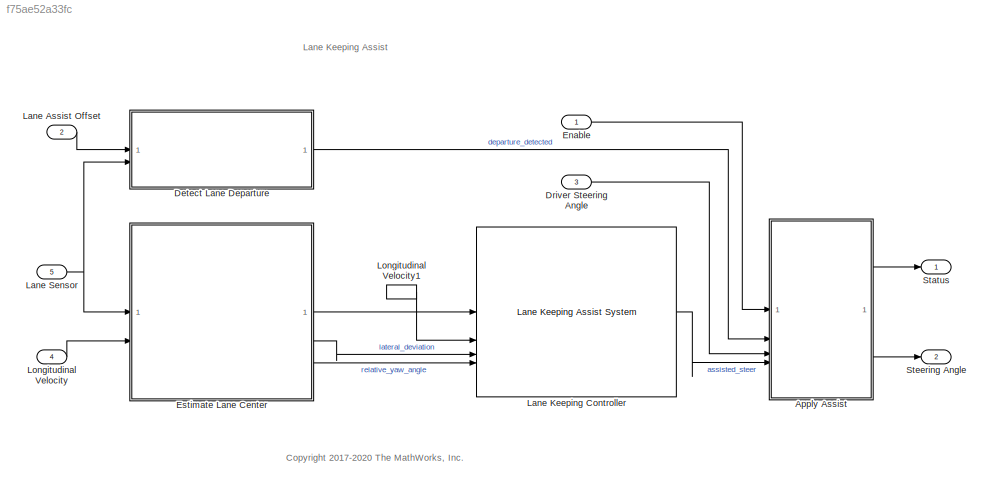
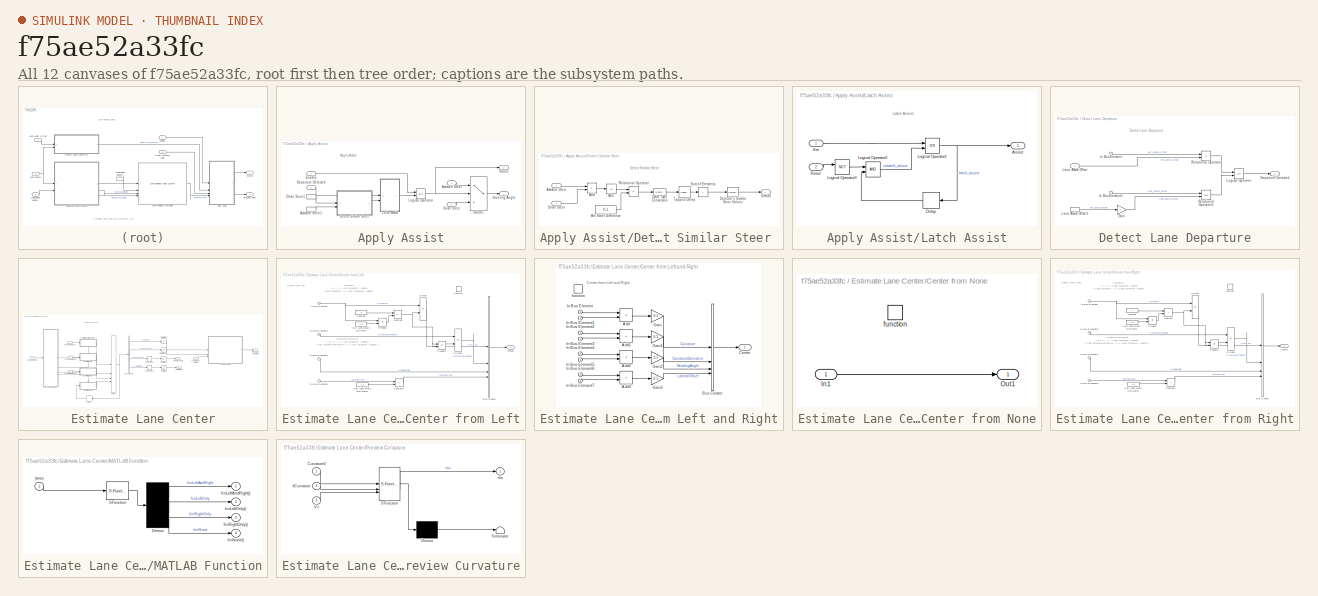
[diagram: thumbnail index - all 12 canvases of the model, root first then tree order]
MODEL slx_f75ae52a33fc
KIND model
CONFIG AbsTol = auto
CONFIG EnableMultiTasking = off
CONFIG FixedStep = Ts
CONFIG MaxStep = auto
CONFIG MinStep = auto
CONFIG RelTol = 1e-3
CONFIG SampleTimeConstraint = Unconstrained
CONFIG SolverName = FixedStepDiscrete
CONFIG StartTime = 0.0
CONFIG StopTime = inf
BLOCK [SubSystem] Apply Assist
BLOCK [Inport] Apply Assist/Assisted Steer
  Port = 4
BLOCK [InportShadow] Apply Assist/Assisted Steer1
  Port = 4
BLOCK [Inport] Apply Assist/Departure Detected
  Port = 2
BLOCK [SubSystem] Apply Assist/Detect Similar Steer 
BLOCK [Abs] Apply Assist/Detect Similar Steer /Abs
  SaturateOnIntegerOverflow = off
BLOCK [Sum] Apply Assist/Detect Similar Steer /Add
  IconShape = rectangular
  Inputs = +-
BLOCK [Inport] Apply Assist/Detect Similar Steer /Assisted Steer
  Port = 2
BLOCK [DataTypeConversion] Apply Assist/Detect Similar Steer /Data Type Conversion
  OutDataTypeStr = single
  RndMeth = Floor
  SaturateOnIntegerOverflow = off
BLOCK [Reference] Apply Assist/Detect Similar Steer /Deteted 5 Similar Steer Values  REF=simulink/Logic and Bit
Operations/Compare
To Constant
  SourceBlock = simulink/Logic and Bit\nOperations/Compare\nTo Constant
  SourceType = Compare To Constant
BLOCK [Inport] Apply Assist/Detect Similar Steer /Driver Steer
BLOCK [Constant] Apply Assist/Detect Similar Steer /Min Steer Difference
  Value = 0.1
BLOCK [RelationalOperator] Apply Assist/Detect Similar Steer /Relational Operator
  InputSameDT = off
  Operator = <=
  OutDataTypeStr = boolean
  RndMeth = Simplest
BLOCK [Outport] Apply Assist/Detect Similar Steer /Similar
  VectorParamsAs1DForOutWhenUnconnected = off
BLOCK [Sum] Apply Assist/Detect Similar Steer /Sum of Elements
  IconShape = rectangular
  Inputs = +
BLOCK [Reference] Apply Assist/Detect Similar Steer /Tapped Delay  REF=simulink/Discrete/Tapped Delay
  SourceBlock = simulink/Discrete/Tapped Delay
  SourceType = Tapped Delay Line
BLOCK [Inport] Apply Assist/Driver Steer
  Port = 3
BLOCK [InportShadow] Apply Assist/Driver Steer1
  Port = 3
BLOCK [Inport] Apply Assist/Enable
BLOCK [SubSystem] Apply Assist/Latch Assist
BLOCK [Outport] Apply Assist/Latch Assist/Assist
  VectorParamsAs1DForOutWhenUnconnected = off
BLOCK [Delay] Apply Assist/Latch Assist/Delay
  DelayLength = 1
  InputPortMap = u0
BLOCK [Logic] Apply Assist/Latch Assist/Logical Operator1
  AllPortsSameDT = off
  IconShape = distinctive
  Operator = OR
  OutDataTypeStr = boolean
BLOCK [Logic] Apply Assist/Latch Assist/Logical Operator2
  AllPortsSameDT = off
  IconShape = distinctive
  OutDataTypeStr = boolean
BLOCK [Logic] Apply Assist/Latch Assist/Logical Operator3
  AllPortsSameDT = off
  IconShape = distinctive
  Operator = NOT
  OutDataTypeStr = boolean
BLOCK [Inport] Apply Assist/Latch Assist/Reset
  Port = 2
BLOCK [Inport] Apply Assist/Latch Assist/Set
BLOCK [Logic] Apply Assist/Logical Operator
  AllPortsSameDT = off
  IconShape = distinctive
  OutDataTypeStr = boolean
BLOCK [Outport] Apply Assist/Status
  VectorParamsAs1DForOutWhenUnconnected = off
BLOCK [Outport] Apply Assist/Steering Angle
  Port = 2
  Unit = rad
  VectorParamsAs1DForOutWhenUnconnected = off
BLOCK [Switch] Apply Assist/Switch1
  Criteria = u2 ~= 0
  InputSameDT = off
  SaturateOnIntegerOverflow = off
  Threshold = 2
BLOCK [SubSystem] Detect Lane Departure
BLOCK [Outport] Detect Lane Departure/Departure Detected
  VectorParamsAs1DForOutWhenUnconnected = off
BLOCK [Gain] Detect Lane Departure/Gain
  Gain = -1
BLOCK [Inport] Detect Lane Departure/In Bus Element
  Port = 2
BLOCK [Inport] Detect Lane Departure/In Bus Element1
  Port = 2
BLOCK [Inport] Detect Lane Departure/Lane Assist Offset
BLOCK [InportShadow] Detect Lane Departure/Lane Assist Offset1
BLOCK [Logic] Detect Lane Departure/Logical Operator
  AllPortsSameDT = off
  IconShape = distinctive
  Operator = OR
  OutDataTypeStr = boolean
BLOCK [RelationalOperator] Detect Lane Departure/Relational Operator
  InputSameDT = off
  Operator = <=
  OutDataTypeStr = boolean
  RndMeth = Simplest
BLOCK [RelationalOperator] Detect Lane Departure/Relational Operator1
  InputSameDT = off
  OutDataTypeStr = boolean
  RndMeth = Simplest
BLOCK [Inport] Driver Steering Angle
  Port = 3
  Unit = rad
BLOCK [Inport] Enable
  OutDataTypeStr = boolean
  SampleTime = Ts
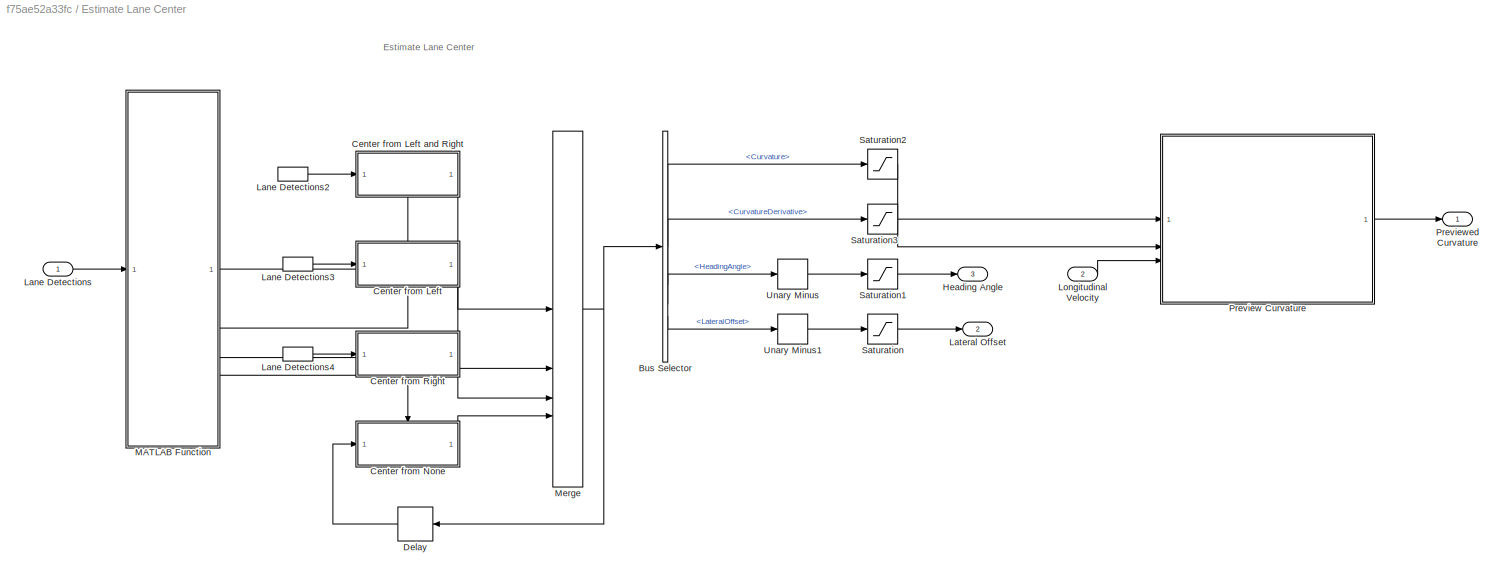
BLOCK [SubSystem] Estimate Lane Center
  VariantControl = v2
BLOCK [BusSelector] Estimate Lane Center/Bus Selector
  OutputSignals = Curvature,CurvatureDerivative,HeadingAngle,LateralOffset
BLOCK [SubSystem] Estimate Lane Center/Center from Left
  TreatAsAtomicUnit = on
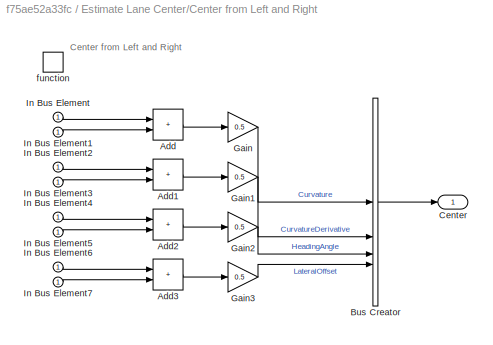
BLOCK [SubSystem] Estimate Lane Center/Center from Left and Right
  TreatAsAtomicUnit = on
BLOCK [Sum] Estimate Lane Center/Center from Left and Right/Add
  IconShape = rectangular
BLOCK [Sum] Estimate Lane Center/Center from Left and Right/Add1
  IconShape = rectangular
BLOCK [Sum] Estimate Lane Center/Center from Left and Right/Add2
  IconShape = rectangular
BLOCK [Sum] Estimate Lane Center/Center from Left and Right/Add3
  IconShape = rectangular
BLOCK [BusCreator] Estimate Lane Center/Center from Left and Right/Bus Creator
  DisplayOption = bar
  InheritFromInputs = on
  Inputs = 4
BLOCK [Outport] Estimate Lane Center/Center from Left and Right/Center
  VectorParamsAs1DForOutWhenUnconnected = off
BLOCK [Gain] Estimate Lane Center/Center from Left and Right/Gain
  Gain = 0.5
BLOCK [Gain] Estimate Lane Center/Center from Left and Right/Gain1
  Gain = 0.5
BLOCK [Gain] Estimate Lane Center/Center from Left and Right/Gain2
  Gain = 0.5
BLOCK [Gain] Estimate Lane Center/Center from Left and Right/Gain3
  Gain = 0.5
BLOCK [Inport] Estimate Lane Center/Center from Left and Right/In Bus Element
BLOCK [Inport] Estimate Lane Center/Center from Left and Right/In Bus Element1
BLOCK [Inport] Estimate Lane Center/Center from Left and Right/In Bus Element2
BLOCK [Inport] Estimate Lane Center/Center from Left and Right/In Bus Element3
BLOCK [Inport] Estimate Lane Center/Center from Left and Right/In Bus Element4
BLOCK [Inport] Estimate Lane Center/Center from Left and Right/In Bus Element5
BLOCK [Inport] Estimate Lane Center/Center from Left and Right/In Bus Element6
BLOCK [Inport] Estimate Lane Center/Center from Left and Right/In Bus Element7
BLOCK [TriggerPort] Estimate Lane Center/Center from Left and Right/function
  StatesWhenEnabling = held
  TriggerType = function-call
  VariantControl = Variant
BLOCK [BusCreator] Estimate Lane Center/Center from Left/Bus Creator
  DisplayOption = bar
  InheritFromInputs = on
  Inputs = 4
BLOCK [Outport] Estimate Lane Center/Center from Left/Center
  VectorParamsAs1DForOutWhenUnconnected = off
BLOCK [Constant] Estimate Lane Center/Center from Left/Constant
  OutDataTypeStr = Inherit: Inherit via back propagation
BLOCK [Product] Estimate Lane Center/Center from Left/Divide
  Inputs = */
BLOCK [Product] Estimate Lane Center/Center from Left/Divide1
  Inputs = */
BLOCK [Constant] Estimate Lane Center/Center from Left/Half Lane Width Estimate
  OutDataTypeStr = Inherit: Inherit via back propagation
  Value = 1.8
BLOCK [Constant] Estimate Lane Center/Center from Left/Half Lane Width Estimate1
  OutDataTypeStr = Inherit: Inherit via back propagation
  Value = 1.8
BLOCK [Inport] Estimate Lane Center/Center from Left/In Bus Element
BLOCK [Inport] Estimate Lane Center/Center from Left/In Bus Element2
BLOCK [Inport] Estimate Lane Center/Center from Left/In Bus Element4
BLOCK [Inport] Estimate Lane Center/Center from Left/In Bus Element6
BLOCK [Product] Estimate Lane Center/Center from Left/Product
BLOCK [Product] Estimate Lane Center/Center from Left/Product1
BLOCK [Sum] Estimate Lane Center/Center from Left/Subtract
  IconShape = rectangular
  Inputs = +-
BLOCK [Sum] Estimate Lane Center/Center from Left/Subtract1
  IconShape = rectangular
  Inputs = +-
BLOCK [TriggerPort] Estimate Lane Center/Center from Left/function
  StatesWhenEnabling = held
  TriggerType = function-call
  VariantControl = Variant
BLOCK [SubSystem] Estimate Lane Center/Center from None
  TreatAsAtomicUnit = on
BLOCK [Inport] Estimate Lane Center/Center from None/In1
BLOCK [Outport] Estimate Lane Center/Center from None/Out1
  VectorParamsAs1DForOutWhenUnconnected = off
BLOCK [TriggerPort] Estimate Lane Center/Center from None/function
  StatesWhenEnabling = held
  TriggerType = function-call
  VariantControl = Variant
BLOCK [SubSystem] Estimate Lane Center/Center from Right
  TreatAsAtomicUnit = on
BLOCK [BusCreator] Estimate Lane Center/Center from Right/Bus Creator
  DisplayOption = bar
  InheritFromInputs = on
  Inputs = 4
BLOCK [Outport] Estimate Lane Center/Center from Right/Center
  VectorParamsAs1DForOutWhenUnconnected = off
BLOCK [Constant] Estimate Lane Center/Center from Right/Constant
  OutDataTypeStr = Inherit: Inherit via back propagation
BLOCK [Product] Estimate Lane Center/Center from Right/Divide
  Inputs = */
BLOCK [Product] Estimate Lane Center/Center from Right/Divide1
  Inputs = */
BLOCK [Constant] Estimate Lane Center/Center from Right/Half Lane Width Estimate
  OutDataTypeStr = Inherit: Inherit via back propagation
  Value = 1.8
BLOCK [Constant] Estimate Lane Center/Center from Right/Half Lane Width Estimate1
  OutDataTypeStr = Inherit: Inherit via back propagation
  Value = 1.8
BLOCK [Inport] Estimate Lane Center/Center from Right/In Bus Element
BLOCK [Inport] Estimate Lane Center/Center from Right/In Bus Element2
BLOCK [Inport] Estimate Lane Center/Center from Right/In Bus Element4
BLOCK [Inport] Estimate Lane Center/Center from Right/In Bus Element6
BLOCK [Product] Estimate Lane Center/Center from Right/Product
BLOCK [Product] Estimate Lane Center/Center from Right/Product1
BLOCK [Sum] Estimate Lane Center/Center from Right/Subtract
  IconShape = rectangular
BLOCK [Sum] Estimate Lane Center/Center from Right/Subtract1
  IconShape = rectangular
BLOCK [TriggerPort] Estimate Lane Center/Center from Right/function
  StatesWhenEnabling = held
  TriggerType = function-call
  VariantControl = Variant
BLOCK [Delay] Estimate Lane Center/Delay
  DelayLength = 1
  InputPortMap = u0
BLOCK [Outport] Estimate Lane Center/Heading Angle
  Port = 3
  VectorParamsAs1DForOutWhenUnconnected = off
BLOCK [Inport] Estimate Lane Center/Lane Detections
BLOCK [InportShadow] Estimate Lane Center/Lane Detections2
BLOCK [InportShadow] Estimate Lane Center/Lane Detections3
BLOCK [InportShadow] Estimate Lane Center/Lane Detections4
BLOCK [Outport] Estimate Lane Center/Lateral Offset
  Port = 2
  VectorParamsAs1DForOutWhenUnconnected = off
BLOCK [Inport] Estimate Lane Center/Longitudinal Velocity
  OutDataTypeStr = single
  Port = 2
BLOCK [SubSystem] Estimate Lane Center/MATLAB Function
  ErrorFcn = Stateflow.Translate.translate
  PermitHierarchicalResolution = ExplicitOnly
  SFBlockType = MATLAB Function
  TreatAsAtomicUnit = on
BLOCK [Demux] Estimate Lane Center/MATLAB Function/ Demux 
BLOCK [S-Function] Estimate Lane Center/MATLAB Function/ SFunction 
  EnableBusSupport = off
  FunctionName = sf_sfun
  PortCounts = [1 1]
  SFcnIsStateOwnerBlock = off
  SFunctionDeploymentMode = off
  Tag = Stateflow S-Function 9
BLOCK [Outport] Estimate Lane Center/MATLAB Function/fcnLeftAndRight()
  VectorParamsAs1DForOutWhenUnconnected = off
BLOCK [Outport] Estimate Lane Center/MATLAB Function/fcnLeftOnly()
  Port = 2
  VectorParamsAs1DForOutWhenUnconnected = off
BLOCK [Outport] Estimate Lane Center/MATLAB Function/fcnNone()
  Port = 4
  VectorParamsAs1DForOutWhenUnconnected = off
BLOCK [Outport] Estimate Lane Center/MATLAB Function/fcnRightOnly()
  Port = 3
  VectorParamsAs1DForOutWhenUnconnected = off
BLOCK [Inport] Estimate Lane Center/MATLAB Function/lanes
BLOCK [Merge] Estimate Lane Center/Merge
  Inputs = 4
BLOCK [SubSystem] Estimate Lane Center/Preview Curvature
  ErrorFcn = Stateflow.Translate.translate
  PermitHierarchicalResolution = ExplicitOnly
  SFBlockType = MATLAB Function
  SystemSampleTime = Ts
  TreatAsAtomicUnit = on
BLOCK [Demux] Estimate Lane Center/Preview Curvature/ Demux 
  Outputs = 1
BLOCK [S-Function] Estimate Lane Center/Preview Curvature/ SFunction 
  EnableBusSupport = off
  FunctionName = sf_sfun
  Parameters = PredictionHorizon,Ts
  PortCounts = [3 2]
  SFcnIsStateOwnerBlock = off
  SFunctionDeploymentMode = off
  Tag = Stateflow S-Function 10
BLOCK [Terminator] Estimate Lane Center/Preview Curvature/ Terminator 
BLOCK [Inport] Estimate Lane Center/Preview Curvature/Curvature0
BLOCK [Inport] Estimate Lane Center/Preview Curvature/Vx
  Port = 3
BLOCK [Inport] Estimate Lane Center/Preview Curvature/dCurvature
  Port = 2
BLOCK [Outport] Estimate Lane Center/Preview Curvature/rho
  VectorParamsAs1DForOutWhenUnconnected = off
BLOCK [Outport] Estimate Lane Center/Previewed Curvature
  VectorParamsAs1DForOutWhenUnconnected = off
BLOCK [Saturate] Estimate Lane Center/Saturation
BLOCK [Saturate] Estimate Lane Center/Saturation1
  LowerLimit = -0.6
  UpperLimit = 0.6
BLOCK [Saturate] Estimate Lane Center/Saturation2
  LowerLimit = -0.15
  UpperLimit = 0.15
BLOCK [Saturate] Estimate Lane Center/Saturation3
  LowerLimit = -0.06
  UpperLimit = 0.06
BLOCK [UnaryMinus] Estimate Lane Center/Unary Minus
BLOCK [UnaryMinus] Estimate Lane Center/Unary Minus1
BLOCK [Inport] Lane Assist Offset
  OutDataTypeStr = single
  Port = 2
  SampleTime = Ts
  Unit = m
BLOCK [Reference] Lane Keeping Controller  REF=mpcadaslib/Lane Keeping Assist System
  SourceBlock = mpcadaslib/Lane Keeping Assist System
  SourceType = Lane Keeping Assist (LKA) System
BLOCK [Inport] Lane Sensor
  BusOutputAsStruct = on
  OutDataTypeStr = Bus: LaneSensor
  Port = 5
  PortDimensions = [1 1]
  SampleTime = Ts
BLOCK [Inport] Longitudinal Velocity
  OutDataTypeStr = single
  Port = 4
  SampleTime = Ts
  Unit = m/s
BLOCK [InportShadow] Longitudinal Velocity1
  OutDataTypeStr = single
  Port = 4
  SampleTime = Ts
  Unit = m/s
BLOCK [Outport] Status
  PortDimensions = 1
  SamplingMode = Sample based
  SignalType = real
  VectorParamsAs1DForOutWhenUnconnected = off
BLOCK [Outport] Steering Angle
  Port = 2
  PortDimensions = 1
  SamplingMode = Sample based
  SignalType = real
  VectorParamsAs1DForOutWhenUnconnected = off
ANNOTATION (root): Lane Keeping Assist
ANNOTATION (root): <copyright redacted>
ANNOTATION Apply Assist: Apply Assist
ANNOTATION Apply Assist/Detect Similar Steer : Detect Similar Steer
ANNOTATION Apply Assist/Latch Assist: Latch Assist
ANNOTATION Detect Lane Departure: Detect Lane Departure
ANNOTATION Estimate Lane Center: Estimate Lane Center
ANNOTATION Estimate Lane Center/Center from Left: Center from Left
ANNOTATION Estimate Lane Center/Center from Left: Curvature = 1 / ( 1 / (left curvature) – guard) = left curvature / (1 – (left curvature) * guard).
ANNOTATION Estimate Lane Center/Center from Left: Curvature Derivative = D[ 1 / ( 1 / (left curvature) – guard)] = left curvature derivative / (1 – (left curvature) * guard)^2.
ANNOTATION Estimate Lane Center/Center from Left and Right: Center from Left and Right
ANNOTATION Estimate Lane Center/Center from Right: Center from Right
ANNOTATION Estimate Lane Center/Center from Right: Curvature = 1 / ( 1 / (right curvature) + guard) = right curvature / (1 + (right curvature) * guard)
ANNOTATION Estimate Lane Center/Center from Right: Curvature Derivative = D[ 1 / ( 1 / (right curvature) + guard)] = right curvature derivative / (1 + (right curvature) * guard)^2
LINE Apply Assist/Assisted Steer1:1 -> Apply Assist/Detect Similar Steer :2
LINE Apply Assist/Assisted Steer:1 -> Apply Assist/Switch1:1
LINE Apply Assist/Departure Detected:1 -> Apply Assist/Latch Assist:1
LINE Apply Assist/Detect Similar Steer /Abs:1 -> Apply Assist/Detect Similar Steer /Relational Operator:1
LINE Apply Assist/Detect Similar Steer /Add:1 -> Apply Assist/Detect Similar Steer /Abs:1
LINE Apply Assist/Detect Similar Steer /Assisted Steer:1 -> Apply Assist/Detect Similar Steer /Add:1
LINE Apply Assist/Detect Similar Steer /Data Type Conversion:1 -> Apply Assist/Detect Similar Steer /Tapped Delay:1
LINE Apply Assist/Detect Similar Steer /Deteted 5 Similar Steer Values:1 -> Apply Assist/Detect Similar Steer /Similar:1
LINE Apply Assist/Detect Similar Steer /Driver Steer:1 -> Apply Assist/Detect Similar Steer /Add:2
LINE Apply Assist/Detect Similar Steer /Min Steer Difference:1 -> Apply Assist/Detect Similar Steer /Relational Operator:2
LINE Apply Assist/Detect Similar Steer /Relational Operator:1 -> Apply Assist/Detect Similar Steer /Data Type Conversion:1
LINE Apply Assist/Detect Similar Steer /Sum of Elements:1 -> Apply Assist/Detect Similar Steer /Deteted 5 Similar Steer Values:1
LINE Apply Assist/Detect Similar Steer /Tapped Delay:1 -> Apply Assist/Detect Similar Steer /Sum of Elements:1
LINE Apply Assist/Detect Similar Steer :1 -> Apply Assist/Latch Assist:2
LINE Apply Assist/Driver Steer1:1 -> Apply Assist/Detect Similar Steer :1
LINE Apply Assist/Driver Steer:1 -> Apply Assist/Switch1:3
LINE Apply Assist/Enable:1 -> Apply Assist/Logical Operator:1
LINE Apply Assist/Latch Assist/Delay:1 -> Apply Assist/Latch Assist/Logical Operator2:2
NET Apply Assist/Latch Assist/Logical Operator1:1 -> Apply Assist/Latch Assist/Assist:1, Apply Assist/Latch Assist/Delay:1
LINE Apply Assist/Latch Assist/Logical Operator2:1 -> Apply Assist/Latch Assist/Logical Operator1:2
LINE Apply Assist/Latch Assist/Logical Operator3:1 -> Apply Assist/Latch Assist/Logical Operator2:1
LINE Apply Assist/Latch Assist/Reset:1 -> Apply Assist/Latch Assist/Logical Operator3:1
LINE Apply Assist/Latch Assist/Set:1 -> Apply Assist/Latch Assist/Logical Operator1:1
LINE Apply Assist/Latch Assist:1 -> Apply Assist/Logical Operator:2
NET Apply Assist/Logical Operator:1 -> Apply Assist/Status:1, Apply Assist/Switch1:2
LINE Apply Assist/Switch1:1 -> Apply Assist/Steering Angle:1
LINE Apply Assist:1 -> Status:1
LINE Apply Assist:2 -> Steering Angle:1
LINE Detect Lane Departure/Gain:1 -> Detect Lane Departure/Relational Operator1:2
LINE Detect Lane Departure/In Bus Element1:1 -> Detect Lane Departure/Relational Operator1:1
LINE Detect Lane Departure/In Bus Element:1 -> Detect Lane Departure/Relational Operator:1
LINE Detect Lane Departure/Lane Assist Offset1:1 -> Detect Lane Departure/Gain:1
LINE Detect Lane Departure/Lane Assist Offset:1 -> Detect Lane Departure/Relational Operator:2
LINE Detect Lane Departure/Logical Operator:1 -> Detect Lane Departure/Departure Detected:1
LINE Detect Lane Departure/Relational Operator1:1 -> Detect Lane Departure/Logical Operator:2
LINE Detect Lane Departure/Relational Operator:1 -> Detect Lane Departure/Logical Operator:1
LINE Detect Lane Departure:1 -> Apply Assist:2
LINE Driver Steering Angle:1 -> Apply Assist:3
LINE Enable:1 -> Apply Assist:1
LINE Estimate Lane Center/Bus Selector:1 -> Estimate Lane Center/Saturation2:1
LINE Estimate Lane Center/Bus Selector:2 -> Estimate Lane Center/Saturation3:1
LINE Estimate Lane Center/Bus Selector:3 -> Estimate Lane Center/Unary Minus:1
LINE Estimate Lane Center/Bus Selector:4 -> Estimate Lane Center/Unary Minus1:1
LINE Estimate Lane Center/Center from Left and Right/Add1:1 -> Estimate Lane Center/Center from Left and Right/Gain1:1
LINE Estimate Lane Center/Center from Left and Right/Add2:1 -> Estimate Lane Center/Center from Left and Right/Gain2:1
LINE Estimate Lane Center/Center from Left and Right/Add3:1 -> Estimate Lane Center/Center from Left and Right/Gain3:1
LINE Estimate Lane Center/Center from Left and Right/Add:1 -> Estimate Lane Center/Center from Left and Right/Gain:1
LINE Estimate Lane Center/Center from Left and Right/Bus Creator:1 -> Estimate Lane Center/Center from Left and Right/Center:1
LINE Estimate Lane Center/Center from Left and Right/Gain1:1 -> Estimate Lane Center/Center from Left and Right/Bus Creator:2
LINE Estimate Lane Center/Center from Left and Right/Gain2:1 -> Estimate Lane Center/Center from Left and Right/Bus Creator:3
LINE Estimate Lane Center/Center from Left and Right/Gain3:1 -> Estimate Lane Center/Center from Left and Right/Bus Creator:4
LINE Estimate Lane Center/Center from Left and Right/Gain:1 -> Estimate Lane Center/Center from Left and Right/Bus Creator:1
LINE Estimate Lane Center/Center from Left and Right/In Bus Element1:1 -> Estimate Lane Center/Center from Left and Right/Add:2
LINE Estimate Lane Center/Center from Left and Right/In Bus Element2:1 -> Estimate Lane Center/Center from Left and Right/Add1:1
LINE Estimate Lane Center/Center from Left and Right/In Bus Element3:1 -> Estimate Lane Center/Center from Left and Right/Add1:2
LINE Estimate Lane Center/Center from Left and Right/In Bus Element4:1 -> Estimate Lane Center/Center from Left and Right/Add2:1
LINE Estimate Lane Center/Center from Left and Right/In Bus Element5:1 -> Estimate Lane Center/Center from Left and Right/Add2:2
LINE Estimate Lane Center/Center from Left and Right/In Bus Element6:1 -> Estimate Lane Center/Center from Left and Right/Add3:1
LINE Estimate Lane Center/Center from Left and Right/In Bus Element7:1 -> Estimate Lane Center/Center from Left and Right/Add3:2
LINE Estimate Lane Center/Center from Left and Right/In Bus Element:1 -> Estimate Lane Center/Center from Left and Right/Add:1
LINE Estimate Lane Center/Center from Left and Right:1 -> Estimate Lane Center/Merge:1
LINE Estimate Lane Center/Center from Left/Bus Creator:1 -> Estimate Lane Center/Center from Left/Center:1
LINE Estimate Lane Center/Center from Left/Constant:1 -> Estimate Lane Center/Center from Left/Subtract:1
LINE Estimate Lane Center/Center from Left/Divide1:1 -> Estimate Lane Center/Center from Left/Bus Creator:2
LINE Estimate Lane Center/Center from Left/Divide:1 -> Estimate Lane Center/Center from Left/Bus Creator:1
LINE Estimate Lane Center/Center from Left/Half Lane Width Estimate1:1 -> Estimate Lane Center/Center from Left/Subtract1:2
LINE Estimate Lane Center/Center from Left/Half Lane Width Estimate:1 -> Estimate Lane Center/Center from Left/Product:2
LINE Estimate Lane Center/Center from Left/In Bus Element2:1 -> Estimate Lane Center/Center from Left/Divide1:1
LINE Estimate Lane Center/Center from Left/In Bus Element4:1 -> Estimate Lane Center/Center from Left/Bus Creator:3
LINE Estimate Lane Center/Center from Left/In Bus Element6:1 -> Estimate Lane Center/Center from Left/Subtract1:1
NET Estimate Lane Center/Center from Left/In Bus Element:1 -> Estimate Lane Center/Center from Left/Divide:1, Estimate Lane Center/Center from Left/Product:1
LINE Estimate Lane Center/Center from Left/Product1:1 -> Estimate Lane Center/Center from Left/Divide1:2
LINE Estimate Lane Center/Center from Left/Product:1 -> Estimate Lane Center/Center from Left/Subtract:2
LINE Estimate Lane Center/Center from Left/Subtract1:1 -> Estimate Lane Center/Center from Left/Bus Creator:4
NET Estimate Lane Center/Center from Left/Subtract:1 -> Estimate Lane Center/Center from Left/Divide:2, Estimate Lane Center/Center from Left/Product1:1, Estimate Lane Center/Center from Left/Product1:2
LINE Estimate Lane Center/Center from Left:1 -> Estimate Lane Center/Merge:2
LINE Estimate Lane Center/Center from None/In1:1 -> Estimate Lane Center/Center from None/Out1:1
LINE Estimate Lane Center/Center from None:1 -> Estimate Lane Center/Merge:4
LINE Estimate Lane Center/Center from Right/Bus Creator:1 -> Estimate Lane Center/Center from Right/Center:1
LINE Estimate Lane Center/Center from Right/Constant:1 -> Estimate Lane Center/Center from Right/Subtract:1
LINE Estimate Lane Center/Center from Right/Divide1:1 -> Estimate Lane Center/Center from Right/Bus Creator:2
LINE Estimate Lane Center/Center from Right/Divide:1 -> Estimate Lane Center/Center from Right/Bus Creator:1
LINE Estimate Lane Center/Center from Right/Half Lane Width Estimate1:1 -> Estimate Lane Center/Center from Right/Subtract1:2
LINE Estimate Lane Center/Center from Right/Half Lane Width Estimate:1 -> Estimate Lane Center/Center from Right/Product:2
LINE Estimate Lane Center/Center from Right/In Bus Element2:1 -> Estimate Lane Center/Center from Right/Divide1:1
LINE Estimate Lane Center/Center from Right/In Bus Element4:1 -> Estimate Lane Center/Center from Right/Bus Creator:3
LINE Estimate Lane Center/Center from Right/In Bus Element6:1 -> Estimate Lane Center/Center from Right/Subtract1:1
NET Estimate Lane Center/Center from Right/In Bus Element:1 -> Estimate Lane Center/Center from Right/Divide:1, Estimate Lane Center/Center from Right/Product:1
LINE Estimate Lane Center/Center from Right/Product1:1 -> Estimate Lane Center/Center from Right/Divide1:2
LINE Estimate Lane Center/Center from Right/Product:1 -> Estimate Lane Center/Center from Right/Subtract:2
LINE Estimate Lane Center/Center from Right/Subtract1:1 -> Estimate Lane Center/Center from Right/Bus Creator:4
NET Estimate Lane Center/Center from Right/Subtract:1 -> Estimate Lane Center/Center from Right/Divide:2, Estimate Lane Center/Center from Right/Product1:1, Estimate Lane Center/Center from Right/Product1:2
LINE Estimate Lane Center/Center from Right:1 -> Estimate Lane Center/Merge:3
LINE Estimate Lane Center/Delay:1 -> Estimate Lane Center/Center from None:1
LINE Estimate Lane Center/Lane Detections2:1 -> Estimate Lane Center/Center from Left and Right:1
LINE Estimate Lane Center/Lane Detections3:1 -> Estimate Lane Center/Center from Left:1
LINE Estimate Lane Center/Lane Detections4:1 -> Estimate Lane Center/Center from Right:1
LINE Estimate Lane Center/Lane Detections:1 -> Estimate Lane Center/MATLAB Function:1
LINE Estimate Lane Center/Longitudinal Velocity:1 -> Estimate Lane Center/Preview Curvature:3
LINE Estimate Lane Center/MATLAB Function:1 -> Estimate Lane Center/Center from Left and Right:trigger
LINE Estimate Lane Center/MATLAB Function:2 -> Estimate Lane Center/Center from Left:trigger
LINE Estimate Lane Center/MATLAB Function:3 -> Estimate Lane Center/Center from Right:trigger
LINE Estimate Lane Center/MATLAB Function:4 -> Estimate Lane Center/Center from None:trigger
NET Estimate Lane Center/Merge:1 -> Estimate Lane Center/Bus Selector:1, Estimate Lane Center/Delay:1
LINE Estimate Lane Center/Preview Curvature:1 -> Estimate Lane Center/Previewed Curvature:1
LINE Estimate Lane Center/Saturation1:1 -> Estimate Lane Center/Heading Angle:1
LINE Estimate Lane Center/Saturation2:1 -> Estimate Lane Center/Preview Curvature:1
LINE Estimate Lane Center/Saturation3:1 -> Estimate Lane Center/Preview Curvature:2
LINE Estimate Lane Center/Saturation:1 -> Estimate Lane Center/Lateral Offset:1
LINE Estimate Lane Center/Unary Minus1:1 -> Estimate Lane Center/Saturation:1
LINE Estimate Lane Center/Unary Minus:1 -> Estimate Lane Center/Saturation1:1
LINE Estimate Lane Center:1 -> Lane Keeping Controller:1
LINE Estimate Lane Center:2 -> Lane Keeping Controller:3
LINE Estimate Lane Center:3 -> Lane Keeping Controller:4
LINE Lane Assist Offset:1 -> Detect Lane Departure:1
LINE Lane Keeping Controller:1 -> Apply Assist:4
NET Lane Sensor:1 -> Detect Lane Departure:2, Estimate Lane Center:1
LINE Longitudinal Velocity1:1 -> Lane Keeping Controller:2
LINE Longitudinal Velocity:1 -> Estimate Lane Center:2
note: NET lines group one-source signal fan-out (src -> all destinations, sorted); 1:1 wires keep LINE
CHART Estimate Lane Center/MATLAB Function states=1 transitions=1
  STATE_LABEL 'eML_blk_kernel()'
  STATE_LABEL 'SCRIPT:\nfunction fcn(lanes)\n\nleftStrength  = lanes.Left.Strength;\nrightStrength = lanes.Right.Strength;\n\nif (leftStrength > 0) && (rightStrength > 0)\n   fcnLeftAndRight();\n   \nelseif leftStrength > 0\n    fcnLeftOnly();\n    \nelseif rightStrength > 0\n    fcnRightOnly();\n    \nelse\n    fcnNone();\nend'
CHART Estimate Lane Center/Preview Curvature states=1 transitions=1
  STATE_LABEL 'eML_blk_kernel()'
  STATE_LABEL 'SCRIPT:\nfunction rho = predictCurvature(Curvature0,dCurvature,Vx, Ts, PredictionHorizon)\n% Curvature0 = initial curvature per unit length                  [1/m]\n% dCurvature = (constant) derivative of curvature per unit length [1/m^2]\n% CurvatureLength = length for which the clothoid model is valid [m]\n% Vx = speed of vehicle\n\n% We want to export a set of curvatures at a uniform sample time ahead....<+448ch>'
CHART  states=0 transitions=0
CHART  states=0 transitions=0
